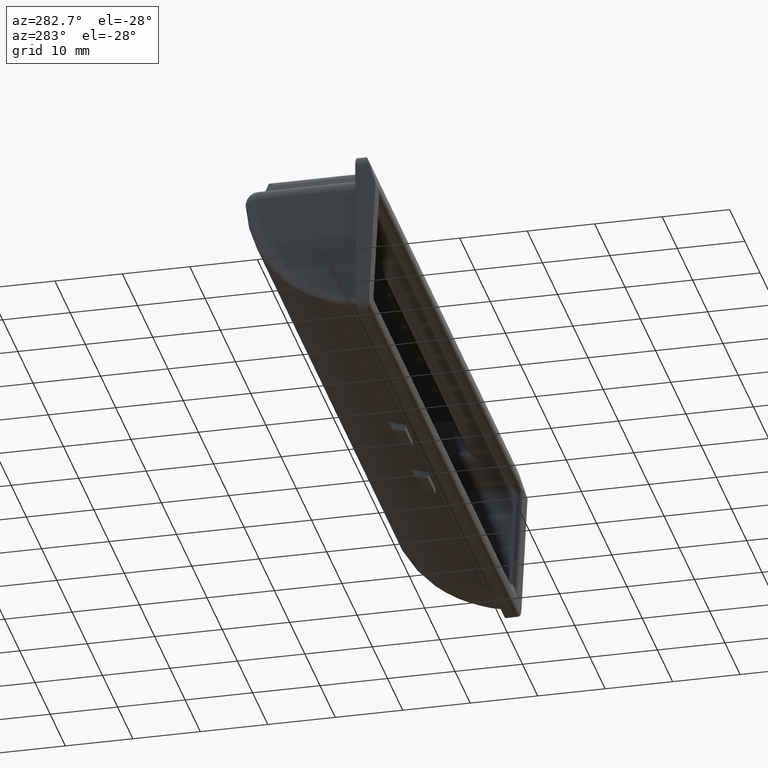
[diagram: clean part render]
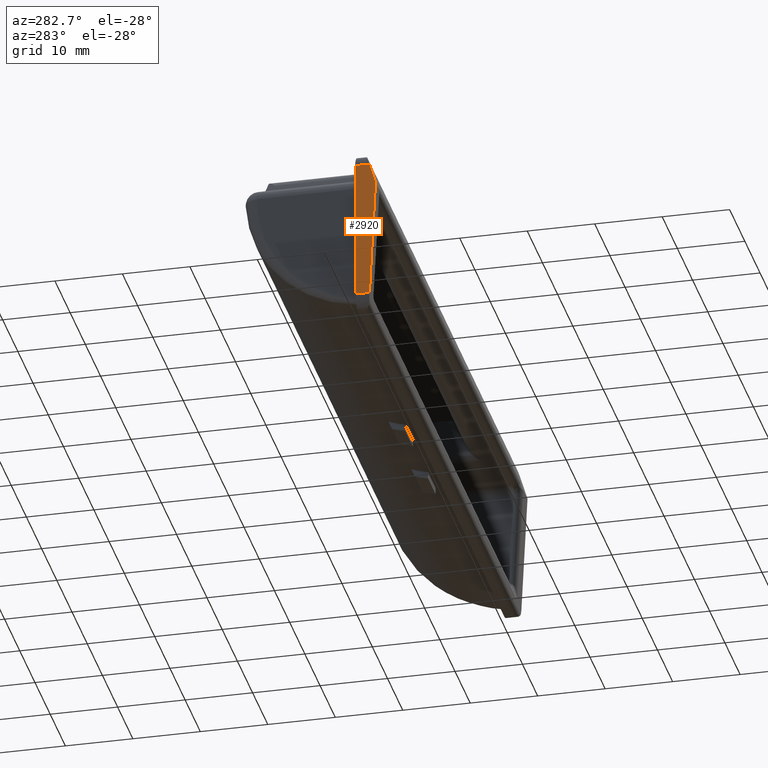
[diagram: same view with one face highlighted and labeled with its STEP entity id]
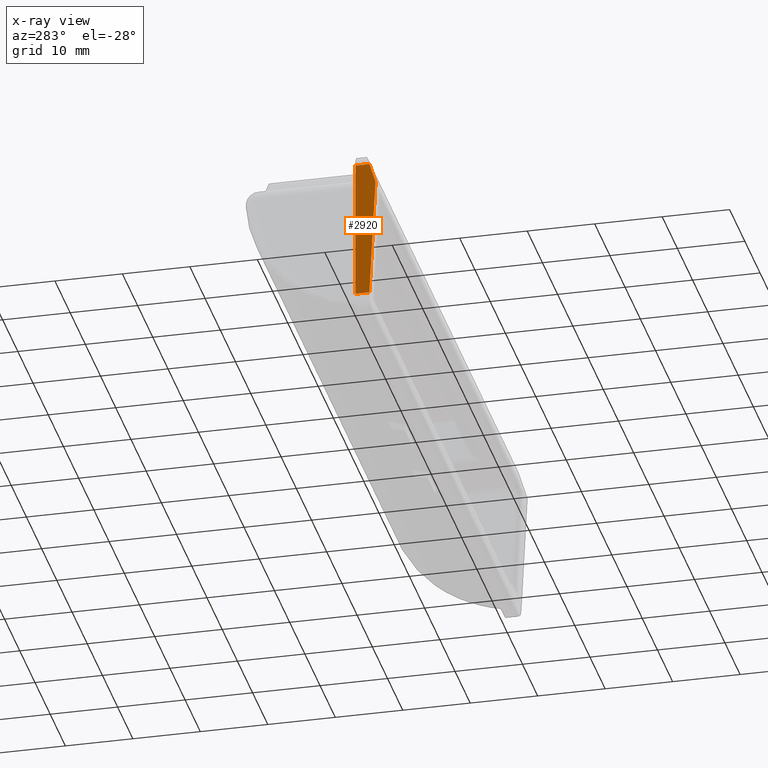
[diagram: x-ray of the same camera — body ghosted, the highlighted face saturated]
A machine part, auxiliary view. The second image highlights one B-rep face of the part: STEP entity #2920.
The next image is the same camera in x-ray: the body ghosted, the highlighted face saturated — about 0% of this face is hidden behind the body in this view.
In plain terms, the highlighted planar face has unit normal (1, 0, 0).
Its self-contained STEP definition (entity closure, byte-faithful):
#12 = CARTESIAN_POINT ( 'NONE',  ( -50.00000000000000000, 0.0000000000000000000, -10.25000000000000000 ) ) ;
#83 = VERTEX_POINT ( 'NONE', #1050 ) ;
#116 = ORIENTED_EDGE ( 'NONE', *, *, #651, .T. ) ;
#193 = CARTESIAN_POINT ( 'NONE',  ( -50.00000000000000000, -4.885320688455050400, 1.465595750747029900 ) ) ;
#259 = EDGE_CURVE ( 'NONE', #793, #1535, #3178, .T. ) ;
#411 = CARTESIAN_POINT ( 'NONE',  ( -50.00000000000000000, 0.0000000000000000000, 0.0000000000000000000 ) ) ;
#414 = CARTESIAN_POINT ( 'NONE',  ( -50.00000000000000000, 0.0000000000000000000, 10.75000000000000000 ) ) ;
#423 = DIRECTION ( 'NONE',  ( -0.0000000000000000000, -0.04993762478849801700, 0.9987523384856144000 ) ) ;
#436 = CARTESIAN_POINT ( 'NONE',  ( -50.00000000000000000, -2.605984974487995000, -0.1302992692440334000 ) ) ;
#471 = VERTEX_POINT ( 'NONE', #2215 ) ;
#506 = DIRECTION ( 'NONE',  ( 0.0000000000000000000, 1.000000000000000000, 0.0000000000000000000 ) ) ;
#590 = LINE ( 'NONE', #2815, #2403 ) ;
#651 = EDGE_CURVE ( 'NONE', #83, #3185, #1904, .T. ) ;
#682 = FACE_OUTER_BOUND ( 'NONE', #1452, .T. ) ;
#685 = VERTEX_POINT ( 'NONE', #12 ) ;
#719 = VECTOR ( 'NONE', #1611, 1000.000000000000000 ) ;
#725 = LINE ( 'NONE', #414, #3144 ) ;
#793 = VERTEX_POINT ( 'NONE', #1743 ) ;
#855 = CARTESIAN_POINT ( 'NONE',  ( -50.00000000000000000, -2.100000279893320200, 10.75000000000000000 ) ) ;
#959 = EDGE_CURVE ( 'NONE', #3185, #471, #725, .T. ) ;
#1050 = CARTESIAN_POINT ( 'NONE',  ( -50.00000000000000000, -2.950465458106414900, 7.915115190994890200 ) ) ;
#1146 = DIRECTION ( 'NONE',  ( 0.0000000000000000000, 1.000000000000000000, 0.0000000000000000000 ) ) ;
#1164 = VECTOR ( 'NONE', #1499, 1000.000000000000100 ) ;
#1348 = DIRECTION ( 'NONE',  ( -1.000000000000000000, -0.0000000000000000000, -0.0000000000000000000 ) ) ;
#1352 = ORIENTED_EDGE ( 'NONE', *, *, #2165, .T. ) ;
#1419 = EDGE_CURVE ( 'NONE', #471, #685, #590, .T. ) ;
#1422 = AXIS2_PLACEMENT_3D ( 'NONE', #2860, #1348, #3125 ) ;
#1443 = LINE ( 'NONE', #2871, #719 ) ;
#1452 = EDGE_LOOP ( 'NONE', ( #2098, #1455, #116, #2030, #2695, #1352 ) ) ;
#1455 = ORIENTED_EDGE ( 'NONE', *, *, #2870, .T. ) ;
#1499 = DIRECTION ( 'NONE',  ( -0.0000000000000000000, 0.2873478035818944300, 0.9578263098164828700 ) ) ;
#1527 = AXIS2_PLACEMENT_3D ( 'NONE', #411, #2647, #1146 ) ;
#1535 = VERTEX_POINT ( 'NONE', #2352 ) ;
#1611 = DIRECTION ( 'NONE',  ( 0.0000000000000000000, -1.000000000000000000, 0.0000000000000000000 ) ) ;
#1743 = CARTESIAN_POINT ( 'NONE',  ( -50.00000000000000000, -2.099999858267255000, -10.25000000000000000 ) ) ;
#1746 = VECTOR ( 'NONE', #423, 1000.000000000000000 ) ;
#1877 = DIRECTION ( 'NONE',  ( -0.0000000000000000000, -0.0000000000000000000, -1.000000000000000000 ) ) ;
#1904 = LINE ( 'NONE', #193, #1164 ) ;
#2030 = ORIENTED_EDGE ( 'NONE', *, *, #959, .T. ) ;
#2098 = ORIENTED_EDGE ( 'NONE', *, *, #259, .T. ) ;
#2144 = CIRCLE ( 'NONE', #1422, 1.000000000000000000 ) ;
#2165 = EDGE_CURVE ( 'NONE', #685, #793, #1443, .T. ) ;
#2215 = CARTESIAN_POINT ( 'NONE',  ( -50.00000000000000000, 0.0000000000000000000, 10.75000000000000000 ) ) ;
#2352 = CARTESIAN_POINT ( 'NONE',  ( -50.00000000000000000, -2.991391486775550200, 7.577829762624499900 ) ) ;
#2387 = PLANE ( 'NONE',  #1527 ) ;
#2403 = VECTOR ( 'NONE', #1877, 1000.000000000000000 ) ;
#2647 = DIRECTION ( 'NONE',  ( 1.000000000000000000, 0.0000000000000000000, 0.0000000000000000000 ) ) ;
#2695 = ORIENTED_EDGE ( 'NONE', *, *, #1419, .T. ) ;
#2815 = CARTESIAN_POINT ( 'NONE',  ( -50.00000000000000000, 0.0000000000000000000, 0.0000000000000000000 ) ) ;
#2860 = CARTESIAN_POINT ( 'NONE',  ( -50.00000000000000000, -1.992639148289935000, 7.627767387412990100 ) ) ;
#2870 = EDGE_CURVE ( 'NONE', #1535, #83, #2144, .T. ) ;
#2871 = CARTESIAN_POINT ( 'NONE',  ( -50.00000000000000000, 0.0000000000000000000, -10.25000000000000000 ) ) ;
#2920 = ADVANCED_FACE ( 'NONE', ( #682 ), #2387, .F. ) ;
#3125 = DIRECTION ( 'NONE',  ( 0.0000000000000000000, 3.469446951953614200E-015, -1.000000000000000000 ) ) ;
#3144 = VECTOR ( 'NONE', #506, 1000.000000000000000 ) ;
#3178 = LINE ( 'NONE', #436, #1746 ) ;
#3185 = VERTEX_POINT ( 'NONE', #855 ) ;